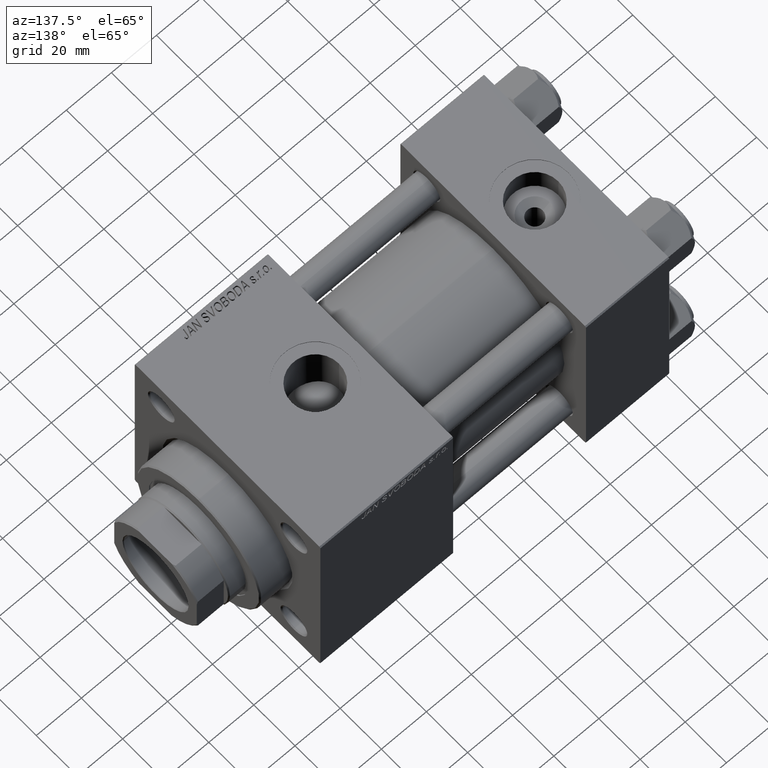
[diagram: clean part render]
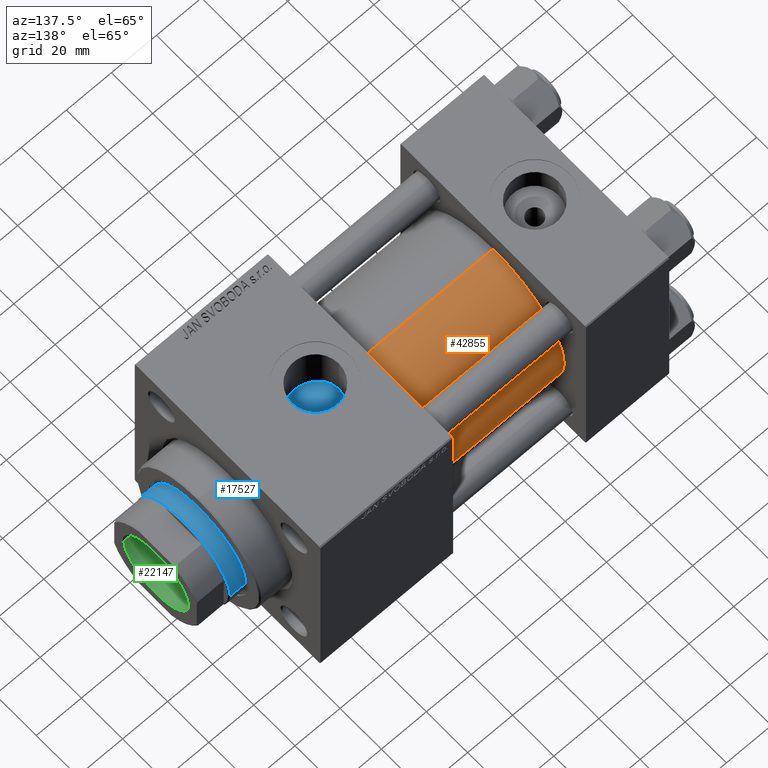
[diagram: same view with three faces highlighted in distinct colors, each labeled with its STEP entity id]
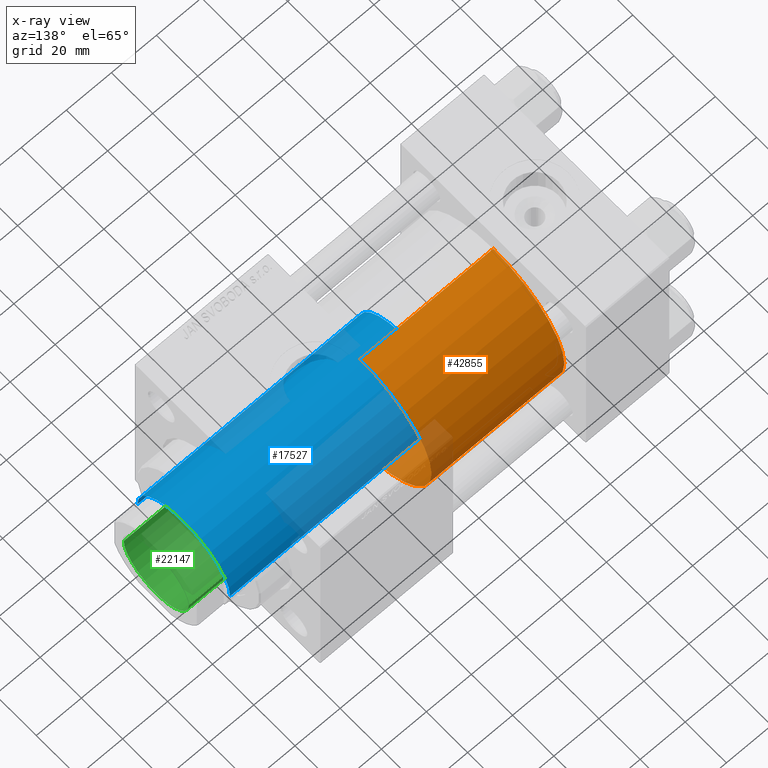
[diagram: x-ray of the same camera — body ghosted, the three highlighted faces saturated]
A machine part, auxiliary view with three faces highlighted in distinct colors.
The next image is the same camera in x-ray (body ghosted, the three faces saturated) — at least one of them is partly hidden behind the body in this view.
Their STEP definitions:

[orange] entity #42855 — the highlighted cylindrical surface (partial cylindrical patch) has radius 34.5 mm, axis along (-1, -0, -0).
#5774 = ORIENTED_EDGE ( 'NONE', *, *, #11773, .F. ) ;
#6094 = CARTESIAN_POINT ( 'NONE',  ( 96.00000000000000000, -2.602085213965210642E-15, 34.50000000000000000 ) ) ;
#7610 = VERTEX_POINT ( 'NONE', #6094 ) ;
#7950 = DIRECTION ( 'NONE',  ( 0.000000000000000000, 0.000000000000000000, 1.000000000000000000 ) ) ;
#8998 = CIRCLE ( 'NONE', #11423, 34.50000000000000000 ) ;
#10133 = EDGE_CURVE ( 'NONE', #15756, #22178, #48732, .T. ) ;
#11263 = DIRECTION ( 'NONE',  ( 1.000000000000000000, -0.000000000000000000, 0.000000000000000000 ) ) ;
#11423 = AXIS2_PLACEMENT_3D ( 'NONE', #25165, #36106, #48241 ) ;
#11742 = EDGE_LOOP ( 'NONE', ( #42297, #25280, #33637, #5774 ) ) ;
#11773 = EDGE_CURVE ( 'NONE', #7610, #22178, #28102, .T. ) ;
#15756 = VERTEX_POINT ( 'NONE', #27955 ) ;
#20263 = AXIS2_PLACEMENT_3D ( 'NONE', #45229, #49032, #26470 ) ;
#22178 = VERTEX_POINT ( 'NONE', #24232 ) ;
#22357 = DIRECTION ( 'NONE',  ( -1.000000000000000000, -0.000000000000000000, -0.000000000000000000 ) ) ;
#24232 = CARTESIAN_POINT ( 'NONE',  ( 37.00000000000000000, -2.602085213965210642E-15, 34.50000000000000000 ) ) ;
#24287 = DIRECTION ( 'NONE',  ( -1.000000000000000000, -0.000000000000000000, -0.000000000000000000 ) ) ;
#25165 = CARTESIAN_POINT ( 'NONE',  ( 96.00000000000000000, -2.602085213965210642E-15, 0.000000000000000000 ) ) ;
#25280 = ORIENTED_EDGE ( 'NONE', *, *, #25994, .T. ) ;
#25994 = EDGE_CURVE ( 'NONE', #40793, #15756, #34050, .T. ) ;
#26470 = DIRECTION ( 'NONE',  ( 0.000000000000000000, 0.000000000000000000, 1.000000000000000000 ) ) ;
#26871 = AXIS2_PLACEMENT_3D ( 'NONE', #45979, #11263, #7950 ) ;
#27955 = CARTESIAN_POINT ( 'NONE',  ( 37.00000000000000000, 1.622946243093158675E-15, -34.50000000000000000 ) ) ;
#28102 = LINE ( 'NONE', #43546, #48806 ) ;
#28350 = CARTESIAN_POINT ( 'NONE',  ( 96.00000000000000000, 1.622946243093158675E-15, -34.50000000000000000 ) ) ;
#33637 = ORIENTED_EDGE ( 'NONE', *, *, #10133, .T. ) ;
#34050 = LINE ( 'NONE', #49741, #37012 ) ;
#36106 = DIRECTION ( 'NONE',  ( 1.000000000000000000, 0.000000000000000000, 0.000000000000000000 ) ) ;
#37012 = VECTOR ( 'NONE', #22357, 1000.000000000000000 ) ;
#37888 = FACE_OUTER_BOUND ( 'NONE', #11742, .T. ) ;
#40793 = VERTEX_POINT ( 'NONE', #28350 ) ;
#41175 = CYLINDRICAL_SURFACE ( 'NONE', #20263, 34.50000000000000000 ) ;
#42297 = ORIENTED_EDGE ( 'NONE', *, *, #44059, .F. ) ;
#42855 = ADVANCED_FACE ( 'NONE', ( #37888 ), #41175, .T. ) ;
#43546 = CARTESIAN_POINT ( 'NONE',  ( 96.00000000000000000, -2.602085213965210642E-15, 34.50000000000000000 ) ) ;
#44059 = EDGE_CURVE ( 'NONE', #40793, #7610, #8998, .T. ) ;
#45229 = CARTESIAN_POINT ( 'NONE',  ( 96.00000000000000000, -2.602085213965210642E-15, 0.000000000000000000 ) ) ;
#45979 = CARTESIAN_POINT ( 'NONE',  ( 37.00000000000000000, -2.602085213965210642E-15, 0.000000000000000000 ) ) ;
#48241 = DIRECTION ( 'NONE',  ( 0.000000000000000000, 0.000000000000000000, -1.000000000000000000 ) ) ;
#48732 = CIRCLE ( 'NONE', #26871, 34.50000000000000000 ) ;
#48806 = VECTOR ( 'NONE', #24287, 1000.000000000000000 ) ;
#49032 = DIRECTION ( 'NONE',  ( -1.000000000000000000, -0.000000000000000000, -0.000000000000000000 ) ) ;
#49741 = CARTESIAN_POINT ( 'NONE',  ( 96.00000000000000000, 1.622946243093158675E-15, -34.50000000000000000 ) ) ;

[blue] entity #17527 — the highlighted cylindrical surface (partial cylindrical patch) has radius 22.5 mm, axis along (-1, 0, 0).
#372 = CARTESIAN_POINT ( 'NONE',  ( 0.000000000000000000, 0.000000000000000000, 138.0000000000000000 ) ) ;
#1401 = ORIENTED_EDGE ( 'NONE', *, *, #37514, .F. ) ;
#2660 = VERTEX_POINT ( 'NONE', #40503 ) ;
#2874 = ORIENTED_EDGE ( 'NONE', *, *, #43532, .T. ) ;
#3174 = DIRECTION ( 'NONE',  ( -0.000000000000000000, -0.000000000000000000, -1.000000000000000000 ) ) ;
#9359 = EDGE_CURVE ( 'NONE', #39346, #23894, #22938, .T. ) ;
#10139 = CARTESIAN_POINT ( 'NONE',  ( 0.000000000000000000, 0.000000000000000000, 137.5000000000000568 ) ) ;
#11839 = ORIENTED_EDGE ( 'NONE', *, *, #9359, .T. ) ;
#12441 = DIRECTION ( 'NONE',  ( -0.000000000000000000, -0.000000000000000000, -1.000000000000000000 ) ) ;
#13851 = DIRECTION ( 'NONE',  ( 0.000000000000000000, 0.000000000000000000, 1.000000000000000000 ) ) ;
#16807 = CARTESIAN_POINT ( 'NONE',  ( -22.50000000000000355, 0.000000000000000000, 137.5000000000000568 ) ) ;
#17527 = ADVANCED_FACE ( 'NONE', ( #31069 ), #50058, .T. ) ;
#22742 = AXIS2_PLACEMENT_3D ( 'NONE', #36940, #13851, #24518 ) ;
#22938 = LINE ( 'NONE', #38657, #43873 ) ;
#23894 = VERTEX_POINT ( 'NONE', #31997 ) ;
#24518 = DIRECTION ( 'NONE',  ( 1.000000000000000000, 0.000000000000000000, 0.000000000000000000 ) ) ;
#25357 = DIRECTION ( 'NONE',  ( 0.000000000000000000, 0.000000000000000000, -1.000000000000000000 ) ) ;
#26253 = DIRECTION ( 'NONE',  ( -1.000000000000000000, 0.000000000000000000, 0.000000000000000000 ) ) ;
#26513 = VERTEX_POINT ( 'NONE', #47373 ) ;
#31069 = FACE_OUTER_BOUND ( 'NONE', #48680, .T. ) ;
#31717 = LINE ( 'NONE', #47156, #42762 ) ;
#31997 = CARTESIAN_POINT ( 'NONE',  ( -22.50000000000000355, 0.000000000000000000, 39.00000000000000000 ) ) ;
#35155 = ORIENTED_EDGE ( 'NONE', *, *, #47780, .T. ) ;
#35253 = AXIS2_PLACEMENT_3D ( 'NONE', #372, #3174, #26253 ) ;
#36940 = CARTESIAN_POINT ( 'NONE',  ( 0.000000000000000000, 0.000000000000000000, 39.00000000000000000 ) ) ;
#37514 = EDGE_CURVE ( 'NONE', #2660, #26513, #31717, .T. ) ;
#38408 = DIRECTION ( 'NONE',  ( -0.000000000000000000, -0.000000000000000000, -1.000000000000000000 ) ) ;
#38657 = CARTESIAN_POINT ( 'NONE',  ( -22.50000000000000355, 0.000000000000000000, 138.0000000000000000 ) ) ;
#39346 = VERTEX_POINT ( 'NONE', #16807 ) ;
#39875 = CIRCLE ( 'NONE', #22742, 22.50000000000000355 ) ;
#40503 = CARTESIAN_POINT ( 'NONE',  ( 22.50000000000000355, 2.755455298081545172E-15, 137.5000000000000568 ) ) ;
#42137 = CIRCLE ( 'NONE', #47798, 22.50000000000000355 ) ;
#42762 = VECTOR ( 'NONE', #12441, 1000.000000000000000 ) ;
#43532 = EDGE_CURVE ( 'NONE', #2660, #39346, #42137, .T. ) ;
#43873 = VECTOR ( 'NONE', #38408, 1000.000000000000000 ) ;
#45112 = DIRECTION ( 'NONE',  ( 1.000000000000000000, 0.000000000000000000, 0.000000000000000000 ) ) ;
#47156 = CARTESIAN_POINT ( 'NONE',  ( 22.50000000000000355, 2.755455298081545172E-15, 138.0000000000000000 ) ) ;
#47373 = CARTESIAN_POINT ( 'NONE',  ( 22.50000000000000355, 2.755455298081545172E-15, 39.00000000000000000 ) ) ;
#47780 = EDGE_CURVE ( 'NONE', #23894, #26513, #39875, .T. ) ;
#47798 = AXIS2_PLACEMENT_3D ( 'NONE', #10139, #25357, #45112 ) ;
#48680 = EDGE_LOOP ( 'NONE', ( #1401, #2874, #11839, #35155 ) ) ;
#50058 = CYLINDRICAL_SURFACE ( 'NONE', #35253, 22.50000000000000355 ) ;

[green] entity #22147 — the highlighted cylindrical surface (partial cylindrical patch) has radius 15.75 mm, axis along (1, 0, 0).
#90 = EDGE_CURVE ( 'NONE', #19357, #30568, #31772, .T. ) ;
#2045 = AXIS2_PLACEMENT_3D ( 'NONE', #47302, #47544, #35915 ) ;
#3611 = DIRECTION ( 'NONE',  ( -0.000000000000000000, -0.000000000000000000, 1.000000000000000000 ) ) ;
#6526 = EDGE_CURVE ( 'NONE', #21115, #19357, #30151, .T. ) ;
#11570 = VERTEX_POINT ( 'NONE', #12145 ) ;
#12145 = CARTESIAN_POINT ( 'NONE',  ( 15.74999999999999289, 0.000000000000000000, 149.6999999999999886 ) ) ;
#12336 = CYLINDRICAL_SURFACE ( 'NONE', #2045, 15.74999999999999289 ) ;
#14422 = ORIENTED_EDGE ( 'NONE', *, *, #37560, .T. ) ;
#15404 = DIRECTION ( 'NONE',  ( 1.000000000000000000, 0.000000000000000000, 0.000000000000000000 ) ) ;
#15968 = VECTOR ( 'NONE', #3611, 1000.000000000000000 ) ;
#16820 = DIRECTION ( 'NONE',  ( 1.000000000000000000, 0.000000000000000000, 0.000000000000000000 ) ) ;
#17757 = CARTESIAN_POINT ( 'NONE',  ( 15.74999999999998934, 0.000000000000000000, 95.00000000000001421 ) ) ;
#19357 = VERTEX_POINT ( 'NONE', #34700 ) ;
#20423 = FACE_OUTER_BOUND ( 'NONE', #38105, .T. ) ;
#21115 = VERTEX_POINT ( 'NONE', #17757 ) ;
#21524 = LINE ( 'NONE', #25582, #45192 ) ;
#22147 = ADVANCED_FACE ( 'NONE', ( #20423 ), #12336, .F. ) ;
#23196 = AXIS2_PLACEMENT_3D ( 'NONE', #39879, #28981, #16820 ) ;
#25239 = EDGE_CURVE ( 'NONE', #11570, #30568, #45058, .T. ) ;
#25582 = CARTESIAN_POINT ( 'NONE',  ( 15.74999999999999289, 0.000000000000000000, 150.0000000000000284 ) ) ;
#27679 = CARTESIAN_POINT ( 'NONE',  ( -15.74999999999999289, 1.928818708657080556E-15, 149.6999999999999886 ) ) ;
#28981 = DIRECTION ( 'NONE',  ( 0.000000000000000000, 0.000000000000000000, 1.000000000000000000 ) ) ;
#30151 = CIRCLE ( 'NONE', #39044, 15.74999999999998934 ) ;
#30568 = VERTEX_POINT ( 'NONE', #27679 ) ;
#30822 = ORIENTED_EDGE ( 'NONE', *, *, #25239, .T. ) ;
#30887 = DIRECTION ( 'NONE',  ( -0.000000000000000000, -0.000000000000000000, 1.000000000000000000 ) ) ;
#31772 = LINE ( 'NONE', #39110, #15968 ) ;
#34700 = CARTESIAN_POINT ( 'NONE',  ( -15.74999999999998934, 1.928818708657080161E-15, 95.00000000000001421 ) ) ;
#35915 = DIRECTION ( 'NONE',  ( 1.000000000000000000, 0.000000000000000000, 0.000000000000000000 ) ) ;
#37560 = EDGE_CURVE ( 'NONE', #21115, #11570, #21524, .T. ) ;
#38105 = EDGE_LOOP ( 'NONE', ( #50144, #45665, #14422, #30822 ) ) ;
#39044 = AXIS2_PLACEMENT_3D ( 'NONE', #46067, #30887, #15404 ) ;
#39110 = CARTESIAN_POINT ( 'NONE',  ( -15.74999999999999289, 1.928818708657080556E-15, 150.0000000000000284 ) ) ;
#39879 = CARTESIAN_POINT ( 'NONE',  ( 0.000000000000000000, 0.000000000000000000, 149.6999999999999886 ) ) ;
#45058 = CIRCLE ( 'NONE', #23196, 15.74999999999999289 ) ;
#45192 = VECTOR ( 'NONE', #48149, 1000.000000000000000 ) ;
#45665 = ORIENTED_EDGE ( 'NONE', *, *, #6526, .F. ) ;
#46067 = CARTESIAN_POINT ( 'NONE',  ( 0.000000000000000000, 0.000000000000000000, 95.00000000000001421 ) ) ;
#47302 = CARTESIAN_POINT ( 'NONE',  ( 0.000000000000000000, 0.000000000000000000, 150.0000000000000284 ) ) ;
#47544 = DIRECTION ( 'NONE',  ( -0.000000000000000000, -0.000000000000000000, 1.000000000000000000 ) ) ;
#48149 = DIRECTION ( 'NONE',  ( -0.000000000000000000, -0.000000000000000000, 1.000000000000000000 ) ) ;
#50144 = ORIENTED_EDGE ( 'NONE', *, *, #90, .F. ) ;